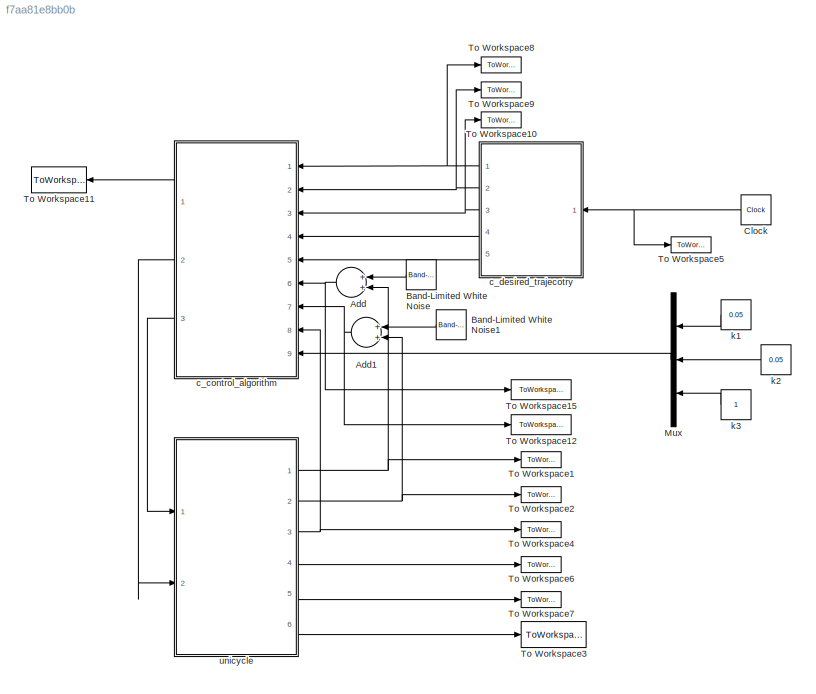
MODEL slx_f7aa81e8bb0b
KIND model
CONFIG AbsTol = auto
CONFIG EnableMultiTasking = on
CONFIG FixedStep = 0.0001
CONFIG MaxStep = auto
CONFIG MinStep = auto
CONFIG RelTol = 1e-5
CONFIG SampleTimeConstraint = Unconstrained
CONFIG Solver = FixedStepAuto
CONFIG SolverName = FixedStepAuto
CONFIG StartTime = 0.0
CONFIG StopFcn = %e_unicycle_3d_trefoil_plot
CONFIG StopTime = 400
BLOCK [Sum] Add
  InputSameDT = off
  OutDataTypeStr = Inherit: Inherit via internal rule
  Ports = [2, 1]
  SaturateOnIntegerOverflow = off
BLOCK [Sum] Add1
  InputSameDT = off
  OutDataTypeStr = Inherit: Inherit via internal rule
  Ports = [2, 1]
  SaturateOnIntegerOverflow = off
BLOCK [Reference] Band-Limited White Noise  REF=simulink/Sources/Band-Limited
White Noise
  Ports = [0, 1]
  SourceBlock = simulink/Sources/Band-Limited\nWhite Noise
  SourceProductBaseCode = SL
  SourceProductName = Simulink
  SourceType = Band-Limited White Noise.
BLOCK [Reference] Band-Limited White Noise1  REF=simulink/Sources/Band-Limited
White Noise
  Ports = [0, 1]
  SourceBlock = simulink/Sources/Band-Limited\nWhite Noise
  SourceProductBaseCode = SL
  SourceProductName = Simulink
  SourceType = Band-Limited White Noise.
BLOCK [Clock] Clock
BLOCK [Mux] Mux
  DisplayOption = bar
  Inputs = 3
  Ports = [3, 1]
BLOCK [ToWorkspace] To Workspace1
  FixptAsFi = on
  MaxDataPoints = inf
  Ports = [1]
  SampleTime = -1
  Save2DSignal = 3-D array (concatenate along third dimension)
  VariableName = px
BLOCK [ToWorkspace] To Workspace10
  FixptAsFi = on
  MaxDataPoints = inf
  Ports = [1]
  SampleTime = -1
  Save2DSignal = 3-D array (concatenate along third dimension)
  VariableName = thetead
BLOCK [ToWorkspace] To Workspace11
  FixptAsFi = on
  MaxDataPoints = inf
  Ports = [1]
  SampleTime = -1
  Save2DSignal = 3-D array (concatenate along third dimension)
  SaveFormat = Timeseries
  VariableName = e
BLOCK [ToWorkspace] To Workspace12
  FixptAsFi = on
  MaxDataPoints = inf
  Ports = [1]
  SampleTime = -1
  Save2DSignal = 3-D array (concatenate along third dimension)
  VariableName = noise_py
BLOCK [ToWorkspace] To Workspace15
  FixptAsFi = on
  MaxDataPoints = inf
  Ports = [1]
  SampleTime = -1
  Save2DSignal = 3-D array (concatenate along third dimension)
  VariableName = noise_px
BLOCK [ToWorkspace] To Workspace2
  FixptAsFi = on
  MaxDataPoints = inf
  Ports = [1]
  SampleTime = -1
  Save2DSignal = 3-D array (concatenate along third dimension)
  VariableName = py
BLOCK [ToWorkspace] To Workspace3
  FixptAsFi = on
  MaxDataPoints = inf
  Ports = [1]
  SampleTime = -1
  Save2DSignal = 3-D array (concatenate along third dimension)
  VariableName = thetadot
BLOCK [ToWorkspace] To Workspace4
  FixptAsFi = on
  MaxDataPoints = inf
  Ports = [1]
  SampleTime = -1
  Save2DSignal = 3-D array (concatenate along third dimension)
  VariableName = theta
BLOCK [ToWorkspace] To Workspace5
  FixptAsFi = on
  MaxDataPoints = inf
  Ports = [1]
  SampleTime = -1
  Save2DSignal = 3-D array (concatenate along third dimension)
  VariableName = time
BLOCK [ToWorkspace] To Workspace6
  FixptAsFi = on
  MaxDataPoints = inf
  Ports = [1]
  SampleTime = -1
  Save2DSignal = 3-D array (concatenate along third dimension)
  VariableName = xdot
BLOCK [ToWorkspace] To Workspace7
  FixptAsFi = on
  MaxDataPoints = inf
  Ports = [1]
  SampleTime = -1
  Save2DSignal = 3-D array (concatenate along third dimension)
  VariableName = ydot
BLOCK [ToWorkspace] To Workspace8
  FixptAsFi = on
  MaxDataPoints = inf
  Ports = [1]
  SampleTime = -1
  Save2DSignal = 3-D array (concatenate along third dimension)
  VariableName = xd
BLOCK [ToWorkspace] To Workspace9
  FixptAsFi = on
  MaxDataPoints = inf
  Ports = [1]
  SampleTime = -1
  Save2DSignal = 3-D array (concatenate along third dimension)
  VariableName = yd
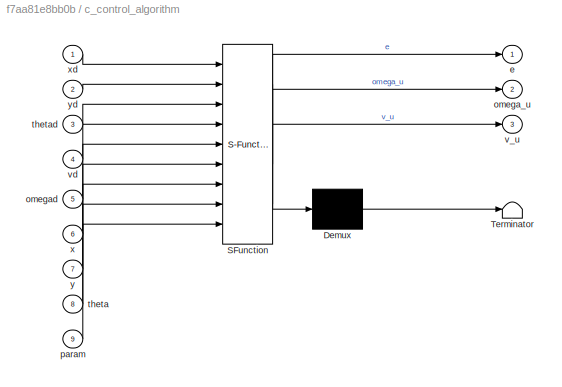
BLOCK [SubSystem] c_control_algorithm
  ErrorFcn = Stateflow.Translate.translate
  PermitHierarchicalResolution = ExplicitOnly
  Ports = [9, 3]
  RequestExecContextInheritance = off
  SFBlockType = MATLAB Function
  TreatAsAtomicUnit = on
BLOCK [Demux] c_control_algorithm/ Demux 
  Outputs = 1
  Ports = [1, 1]
BLOCK [S-Function] c_control_algorithm/ SFunction 
  EnableBusSupport = on
  FunctionName = sf_sfun
  PortCounts = [9 4]
  Ports = [9, 4]
  SFcnIsStateOwnerBlock = off
  SFunctionDeploymentMode = off
  Tag = Stateflow S-Function tt_sim 1
BLOCK [Terminator] c_control_algorithm/ Terminator 
BLOCK [Outport] c_control_algorithm/e
  IconDisplay = Port number
BLOCK [Outport] c_control_algorithm/omega_u
  IconDisplay = Port number
  Port = 2
BLOCK [Inport] c_control_algorithm/omegad
  IconDisplay = Port number
  Port = 5
BLOCK [Inport] c_control_algorithm/param
  IconDisplay = Port number
  Port = 9
BLOCK [Inport] c_control_algorithm/theta
  IconDisplay = Port number
  Port = 8
BLOCK [Inport] c_control_algorithm/thetad
  IconDisplay = Port number
  Port = 3
BLOCK [Outport] c_control_algorithm/v_u
  IconDisplay = Port number
  Port = 3
BLOCK [Inport] c_control_algorithm/vd
  IconDisplay = Port number
  Port = 4
BLOCK [Inport] c_control_algorithm/x
  IconDisplay = Port number
  Port = 6
BLOCK [Inport] c_control_algorithm/xd
  IconDisplay = Port number
BLOCK [Inport] c_control_algorithm/y
  IconDisplay = Port number
  Port = 7
BLOCK [Inport] c_control_algorithm/yd
  IconDisplay = Port number
  Port = 2
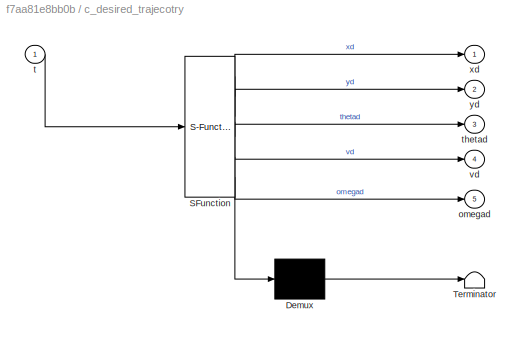
BLOCK [SubSystem] c_desired_trajecotry
  ErrorFcn = Stateflow.Translate.translate
  PermitHierarchicalResolution = ExplicitOnly
  Ports = [1, 5]
  RequestExecContextInheritance = off
  SFBlockType = MATLAB Function
  TreatAsAtomicUnit = on
BLOCK [Demux] c_desired_trajecotry/ Demux 
  Outputs = 1
  Ports = [1, 1]
BLOCK [S-Function] c_desired_trajecotry/ SFunction 
  EnableBusSupport = on
  FunctionName = sf_sfun
  PortCounts = [1 6]
  Ports = [1, 6]
  SFcnIsStateOwnerBlock = off
  SFunctionDeploymentMode = off
  Tag = Stateflow S-Function tt_sim 2
BLOCK [Terminator] c_desired_trajecotry/ Terminator 
BLOCK [Outport] c_desired_trajecotry/omegad
  IconDisplay = Port number
  Port = 5
BLOCK [Inport] c_desired_trajecotry/t
  IconDisplay = Port number
BLOCK [Outport] c_desired_trajecotry/thetad
  IconDisplay = Port number
  Port = 3
BLOCK [Outport] c_desired_trajecotry/vd
  IconDisplay = Port number
  Port = 4
BLOCK [Outport] c_desired_trajecotry/xd
  IconDisplay = Port number
BLOCK [Outport] c_desired_trajecotry/yd
  IconDisplay = Port number
  Port = 2
BLOCK [Constant] k1
  Value = 0.05
BLOCK [Constant] k2
  Value = 0.05
BLOCK [Constant] k3
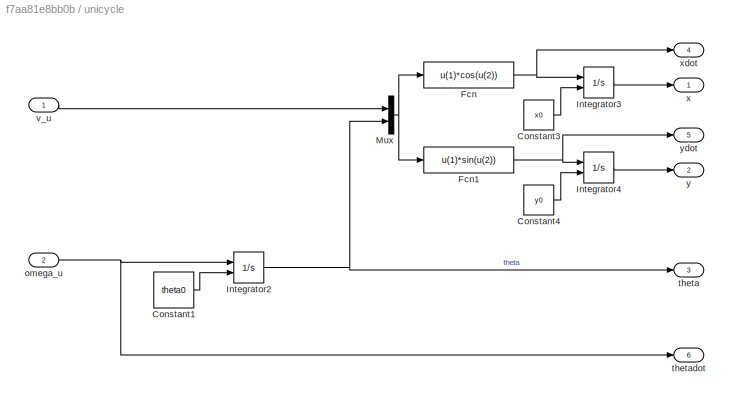
BLOCK [SubSystem] unicycle
  Ports = [2, 6]
  RequestExecContextInheritance = off
BLOCK [Constant] unicycle/Constant1
  Value = theta0
BLOCK [Constant] unicycle/Constant3
  Value = x0
BLOCK [Constant] unicycle/Constant4
  Value = y0
BLOCK [Fcn] unicycle/Fcn
  Expr = u(1)*cos(u(2))
BLOCK [Fcn] unicycle/Fcn1
  Expr = u(1)*sin(u(2))
BLOCK [Integrator] unicycle/Integrator2
  InitialConditionSource = external
  Ports = [2, 1]
BLOCK [Integrator] unicycle/Integrator3
  InitialConditionSource = external
  Ports = [2, 1]
BLOCK [Integrator] unicycle/Integrator4
  InitialConditionSource = external
  Ports = [2, 1]
BLOCK [Mux] unicycle/Mux
  DisplayOption = bar
  Inputs = 2
  Ports = [2, 1]
BLOCK [Inport] unicycle/omega_u
  IconDisplay = Port number
  Port = 2
BLOCK [Outport] unicycle/theta
  IconDisplay = Port number
  Port = 3
BLOCK [Outport] unicycle/thetadot
  IconDisplay = Port number
  Port = 6
BLOCK [Inport] unicycle/v_u
  IconDisplay = Port number
BLOCK [Outport] unicycle/x
  IconDisplay = Port number
BLOCK [Outport] unicycle/xdot
  IconDisplay = Port number
  Port = 4
BLOCK [Outport] unicycle/y
  IconDisplay = Port number
  Port = 2
BLOCK [Outport] unicycle/ydot
  IconDisplay = Port number
  Port = 5
NET Add1:1 -> To Workspace12:1, c_control_algorithm:7
NET Add:1 -> To Workspace15:1, c_control_algorithm:6
LINE Band-Limited White Noise1:1 -> Add1:1
LINE Band-Limited White Noise:1 -> Add:1
NET Clock:1 -> To Workspace5:1, c_desired_trajecotry:1
LINE Mux:1 -> c_control_algorithm:9
LINE c_control_algorithm:1 -> To Workspace11:1
LINE c_control_algorithm:2 -> unicycle:2
LINE c_control_algorithm:3 -> unicycle:1
NET c_desired_trajecotry:1 -> To Workspace8:1, c_control_algorithm:1
NET c_desired_trajecotry:2 -> To Workspace9:1, c_control_algorithm:2
NET c_desired_trajecotry:3 -> To Workspace10:1, c_control_algorithm:3
LINE c_desired_trajecotry:4 -> c_control_algorithm:4
LINE c_desired_trajecotry:5 -> c_control_algorithm:5
LINE k1:1 -> Mux:1
LINE k2:1 -> Mux:2
LINE k3:1 -> Mux:3
LINE unicycle/Constant1:1 -> unicycle/Integrator2:2
LINE unicycle/Constant3:1 -> unicycle/Integrator3:2
LINE unicycle/Constant4:1 -> unicycle/Integrator4:2
NET unicycle/Fcn1:1 -> unicycle/Integrator4:1, unicycle/ydot:1
NET unicycle/Fcn:1 -> unicycle/Integrator3:1, unicycle/xdot:1
NET unicycle/Integrator2:1 -> unicycle/Mux:2, unicycle/theta:1
LINE unicycle/Integrator3:1 -> unicycle/x:1
LINE unicycle/Integrator4:1 -> unicycle/y:1
NET unicycle/Mux:1 -> unicycle/Fcn1:1, unicycle/Fcn:1
NET unicycle/omega_u:1 -> unicycle/Integrator2:1, unicycle/thetadot:1
LINE unicycle/v_u:1 -> unicycle/Mux:1
NET unicycle:1 -> Add:2, To Workspace1:1
NET unicycle:2 -> Add1:2, To Workspace2:1
NET unicycle:3 -> To Workspace4:1, c_control_algorithm:8
LINE unicycle:4 -> To Workspace6:1
LINE unicycle:5 -> To Workspace7:1
LINE unicycle:6 -> To Workspace3:1
note: NET lines group one-source signal fan-out (src -> all destinations, sorted); 1:1 wires keep LINE
CHART c_control_algorithm states=1 transitions=1
  STATE_LABEL 'eML_blk_kernel()'
  STATE_LABEL 'SCRIPT:\nfunction [e, omega_u, v_u] = fcn(xd, yd, thetad, vd, omegad, x, y, theta, param)\nk1 = param(1); k2 = param(2); k3 = param(3);\n\nM = [cos(theta), sin(theta), 0;\n    -sin(theta), cos(theta), 0;\n    0,           0         , 1];\ne = M * [xd-x; yd-y; thetad-theta];\n\nu1 = -k1*e(1);\n\ntmp = sin(e(3))/e(3);\nif(e(3) < 0.01)\n    tmp = 1;\nend\nu2 = -k2*vd*e(2)*tmp - k3*e(3);\n\nv_u = vd*cos(e(3)) - u1;\nom...<+20ch>'
CHART c_desired_trajecotry states=1 transitions=1
  STATE_LABEL 'eML_blk_kernel()'
  STATE_LABEL 'SCRIPT:\nfunction [xd, yd, thetad, vd, omegad] = fcn(t)\npersistent last_thetad\npersistent unwrap_num\nif isempty(last_thetad)\n        last_thetad = 0;\nend\nif isempty(unwrap_num)\n        unwrap_num = 0;\nend\n\ngain = 1/50; nx=3; ny=4; betax=0.1; betay=0.7;\nxd = 250*cos(gain*nx*t+betax)+600;\nyd = 250*cos(gain*ny*t+betay)+350;\n\ndotxd = -15*sin((3*t)/50 + 1/10);\ndotyd = -20*sin((2*t)/25 + 7/10);\nthetad = ...<+500ch>'
